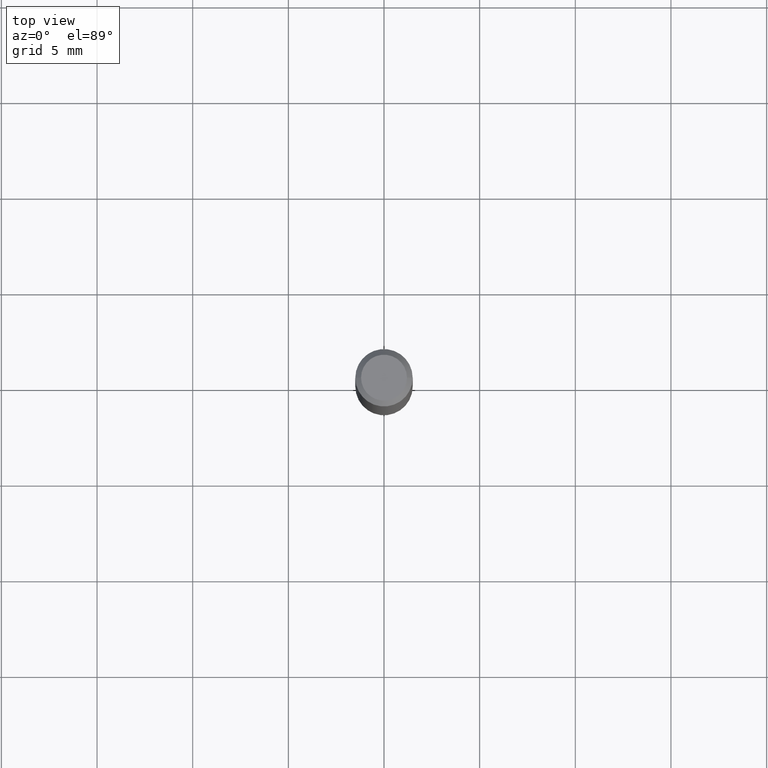
[diagram: clean part render]
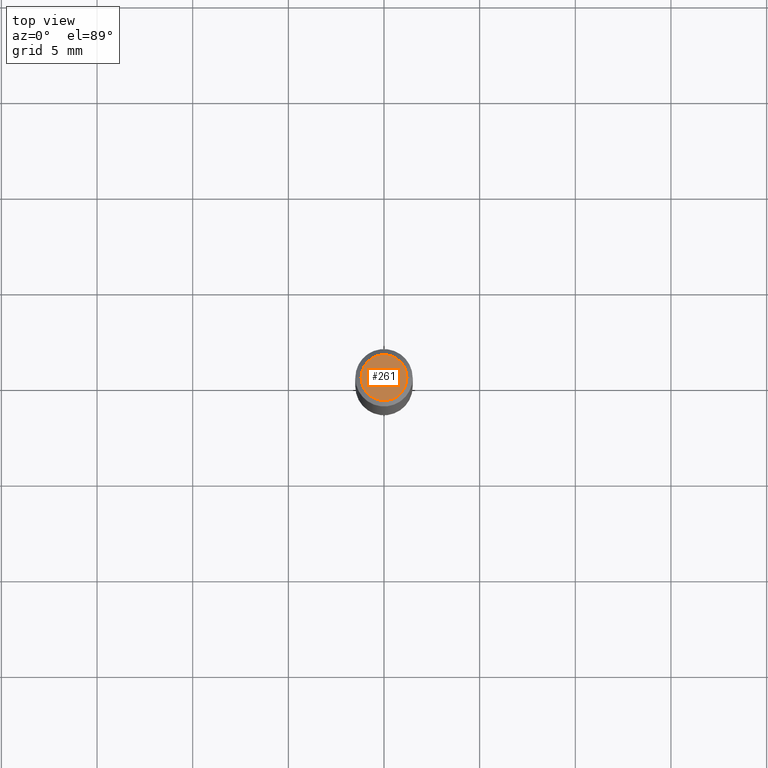
[diagram: same view with one face highlighted and labeled with its STEP entity id]
A machine part, top view. The second image highlights one B-rep face of the part: STEP entity #261.
In plain terms, the highlighted planar face has unit normal (0, -0, -1).
Its self-contained STEP definition (entity closure, byte-faithful):
#14 = PLANE ( 'NONE',  #51 ) ;
#16 = CARTESIAN_POINT ( 'NONE',  ( 4.132873053354867254E-48, -5.900647395337818946E-34, -1.690012582823346072E-19 ) ) ;
#20 = VERTEX_POINT ( 'NONE', #345 ) ;
#51 = AXIS2_PLACEMENT_3D ( 'NONE', #16, #399, #101 ) ;
#86 = CIRCLE ( 'NONE', #201, 0.04724000000000000421 ) ;
#96 = DIRECTION ( 'NONE',  ( -2.445468806185136597E-29, 3.491481338843145583E-15, 1.000000000000000000 ) ) ;
#98 = CARTESIAN_POINT ( 'NONE',  ( 8.265746106709734507E-48, -1.180129479067563789E-33, -3.380025165646692144E-19 ) ) ;
#101 = DIRECTION ( 'NONE',  ( -1.000000000000000000, 6.982962677686265922E-15, -4.876176775795935793E-29 ) ) ;
#124 = EDGE_CURVE ( 'NONE', #454, #20, #237, .T. ) ;
#201 = AXIS2_PLACEMENT_3D ( 'NONE', #98, #96, #359 ) ;
#237 = CIRCLE ( 'NONE', #301, 0.04724000000000000421 ) ;
#261 = ADVANCED_FACE ( 'NONE', ( #295 ), #14, .F. ) ;
#271 = CARTESIAN_POINT ( 'NONE',  ( 8.265746106709734507E-48, -1.180129479067563789E-33, -3.380025165646692144E-19 ) ) ;
#284 = CARTESIAN_POINT ( 'NONE',  ( -0.04724000000000000421, 3.504923541997677355E-16, -3.380025165670481712E-19 ) ) ;
#291 = EDGE_CURVE ( 'NONE', #20, #454, #86, .T. ) ;
#295 = FACE_OUTER_BOUND ( 'NONE', #483, .T. ) ;
#301 = AXIS2_PLACEMENT_3D ( 'NONE', #271, #425, #423 ) ;
#345 = CARTESIAN_POINT ( 'NONE',  ( 0.04724000000000000421, -3.852183633974369345E-16, -3.380025165621689721E-19 ) ) ;
#359 = DIRECTION ( 'NONE',  ( 1.000000000000000000, -6.982962677686266711E-15, 4.876185090822587894E-29 ) ) ;
#399 = DIRECTION ( 'NONE',  ( 2.438088387897960049E-29, -3.491481338843145188E-15, -1.000000000000000000 ) ) ;
#402 = ORIENTED_EDGE ( 'NONE', *, *, #124, .T. ) ;
#416 = ORIENTED_EDGE ( 'NONE', *, *, #291, .T. ) ;
#423 = DIRECTION ( 'NONE',  ( 1.000000000000000000, -6.982962677686266711E-15, 4.876185090822587894E-29 ) ) ;
#425 = DIRECTION ( 'NONE',  ( -2.445468806185136597E-29, 3.491481338843145583E-15, 1.000000000000000000 ) ) ;
#454 = VERTEX_POINT ( 'NONE', #284 ) ;
#483 = EDGE_LOOP ( 'NONE', ( #402, #416 ) ) ;